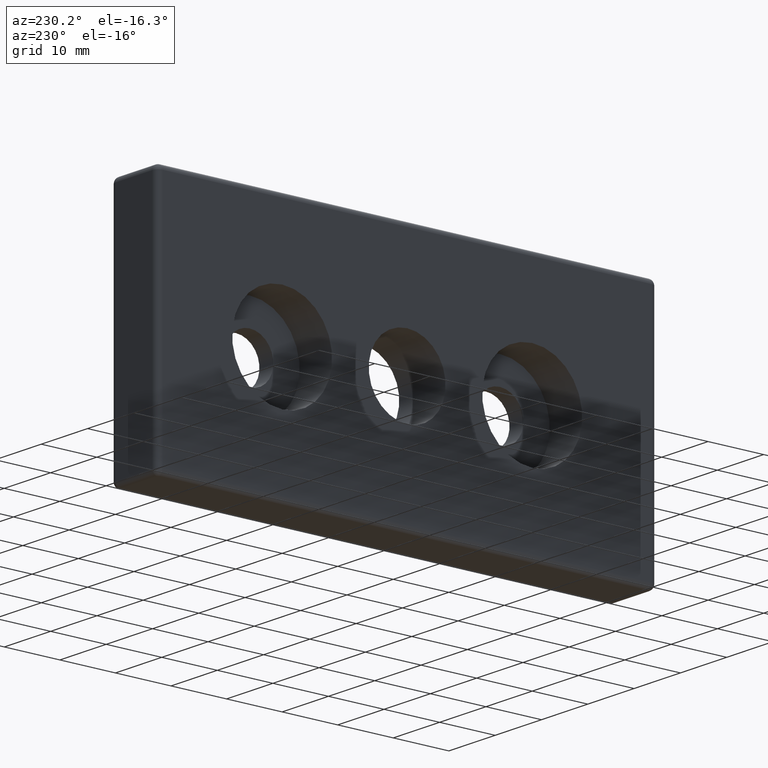
[diagram: clean part render]
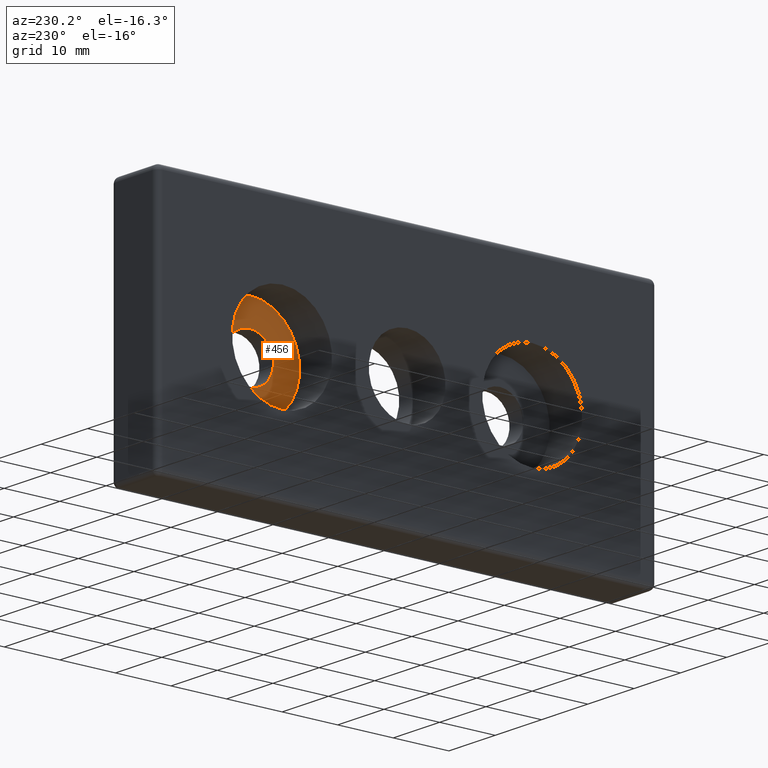
[diagram: same view with one face highlighted and labeled with its STEP entity id]
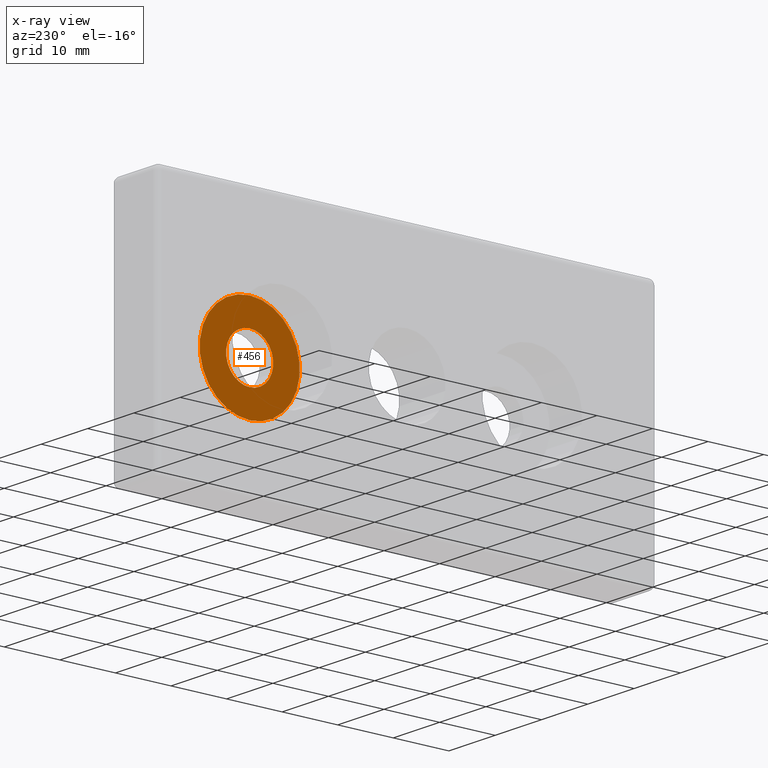
[diagram: x-ray of the same camera — body ghosted, the highlighted face saturated]
A machine part, auxiliary view. The second image highlights one B-rep face of the part: STEP entity #456.
The next image is the same camera in x-ray: the body ghosted, the highlighted face saturated — about 0% of this face is hidden behind the body in this view.
In plain terms, the highlighted planar face has unit normal (-1, 0, 0).
Its self-contained STEP definition (entity closure, byte-faithful):
#21=FACE_BOUND('',#167,.T.);
#34=PLANE('',#521);
#127=FACE_OUTER_BOUND('',#166,.T.);
#166=EDGE_LOOP('',(#408));
#167=EDGE_LOOP('',(#409));
#210=CIRCLE('',#522,9.);
#211=CIRCLE('',#523,4.25);
#244=VERTEX_POINT('',#804);
#245=VERTEX_POINT('',#806);
#302=EDGE_CURVE('',#244,#244,#210,.T.);
#303=EDGE_CURVE('',#245,#245,#211,.T.);
#408=ORIENTED_EDGE('',*,*,#302,.T.);
#409=ORIENTED_EDGE('',*,*,#303,.F.);
#456=ADVANCED_FACE('',(#127,#21),#34,.T.);
#521=AXIS2_PLACEMENT_3D('',#803,#670,#671);
#522=AXIS2_PLACEMENT_3D('',#805,#672,#673);
#523=AXIS2_PLACEMENT_3D('',#807,#674,#675);
#670=DIRECTION('center_axis',(-1.,0.,0.));
#671=DIRECTION('ref_axis',(0.,0.,1.));
#672=DIRECTION('center_axis',(-1.,0.,0.));
#673=DIRECTION('ref_axis',(0.,0.,1.));
#674=DIRECTION('center_axis',(-1.,0.,0.));
#675=DIRECTION('ref_axis',(0.,0.,1.));
#803=CARTESIAN_POINT('Origin',(2.,22.5,0.));
#804=CARTESIAN_POINT('',(2.,22.5,9.));
#805=CARTESIAN_POINT('Origin',(2.,22.5,0.));
#806=CARTESIAN_POINT('',(1.99999999999999,22.5,-4.25));
#807=CARTESIAN_POINT('Origin',(1.99999999999999,22.5,0.));